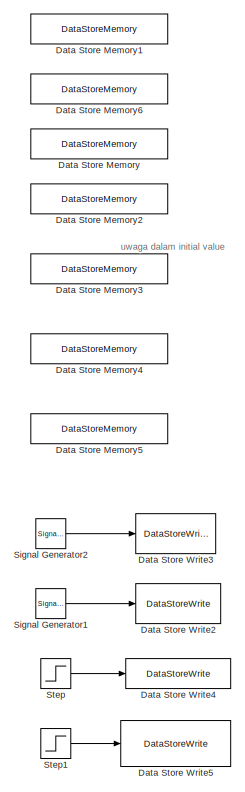
[diagram: root canvas - part 1/2, left side, full height]
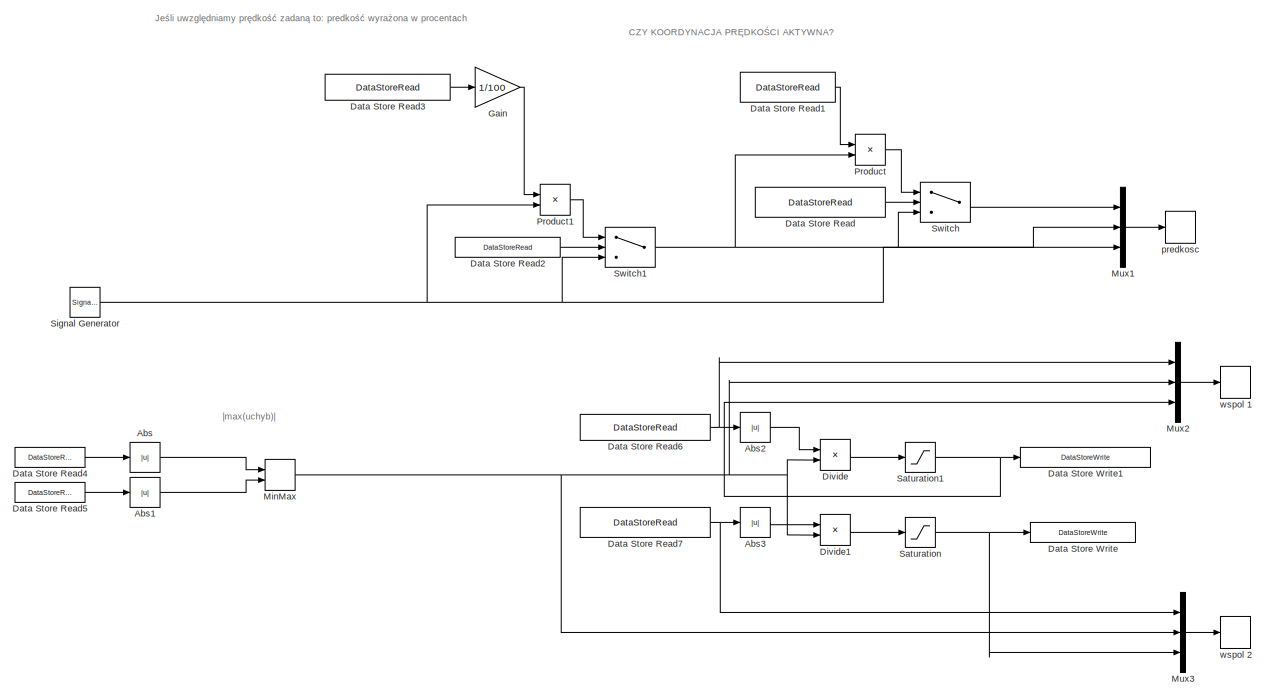
[diagram: root canvas - part 2/2, most of the canvas]
MODEL slx_eca1cad40f23
KIND model
CONFIG AbsTol = auto
CONFIG FixedStep = auto
CONFIG MaxStep = auto
CONFIG MinStep = auto
CONFIG RelTol = 1e-3
CONFIG SampleTimeConstraint = Unconstrained
CONFIG Solver = ode45
CONFIG SolverMode = Auto
CONFIG SolverName = ode45
CONFIG StartTime = 0.0
CONFIG StopTime = 20
BLOCK [Abs] Abs
  SaturateOnIntegerOverflow = off
BLOCK [Abs] Abs1
  SaturateOnIntegerOverflow = off
BLOCK [Abs] Abs2
  SaturateOnIntegerOverflow = off
BLOCK [Abs] Abs3
  SaturateOnIntegerOverflow = off
BLOCK [DataStoreMemory] Data Store Memory
  DataStoreName = V_koordynacja_ON
  ReadBeforeWriteMsg = warning
  WriteAfterReadMsg = warning
  WriteAfterWriteMsg = warning
BLOCK [DataStoreMemory] Data Store Memory1
  DataStoreName = wspolczynnik_1
  ReadBeforeWriteMsg = warning
  WriteAfterReadMsg = warning
  WriteAfterWriteMsg = warning
BLOCK [DataStoreMemory] Data Store Memory2
  DataStoreName = V_zadana_ON
  ReadBeforeWriteMsg = warning
  WriteAfterReadMsg = warning
  WriteAfterWriteMsg = warning
BLOCK [DataStoreMemory] Data Store Memory3
  DataStoreName = V_zadana_wartosc
  InitialValue = 50
  ReadBeforeWriteMsg = warning
  WriteAfterReadMsg = warning
  WriteAfterWriteMsg = warning
BLOCK [DataStoreMemory] Data Store Memory4
  DataStoreName = uchyb_1
  ReadBeforeWriteMsg = warning
  WriteAfterReadMsg = warning
  WriteAfterWriteMsg = warning
BLOCK [DataStoreMemory] Data Store Memory5
  DataStoreName = uchyb_2
  ReadBeforeWriteMsg = warning
  WriteAfterReadMsg = warning
  WriteAfterWriteMsg = warning
BLOCK [DataStoreMemory] Data Store Memory6
  DataStoreName = wspolczynnik_2
  ReadBeforeWriteMsg = warning
  WriteAfterReadMsg = warning
  WriteAfterWriteMsg = warning
BLOCK [DataStoreRead] Data Store Read
  DataStoreName = V_koordynacja_ON
  Ports = [0, 1]
BLOCK [DataStoreRead] Data Store Read1
  DataStoreName = wspolczynnik_1
  Ports = [0, 1]
BLOCK [DataStoreRead] Data Store Read2
  DataStoreName = V_zadana_ON
  Ports = [0, 1]
BLOCK [DataStoreRead] Data Store Read3
  DataStoreName = V_zadana_wartosc
  Ports = [0, 1]
BLOCK [DataStoreRead] Data Store Read4
  DataStoreName = uchyb_1
  Ports = [0, 1]
BLOCK [DataStoreRead] Data Store Read5
  DataStoreName = uchyb_2
  Ports = [0, 1]
BLOCK [DataStoreRead] Data Store Read6
  DataStoreName = uchyb_1
  Ports = [0, 1]
BLOCK [DataStoreRead] Data Store Read7
  DataStoreName = uchyb_2
  Ports = [0, 1]
BLOCK [DataStoreWrite] Data Store Write
  DataStoreName = wspolczynnik_2
  Ports = [1]
BLOCK [DataStoreWrite] Data Store Write1
  DataStoreName = wspolczynnik_1
  Ports = [1]
BLOCK [DataStoreWrite] Data Store Write2
  DataStoreName = uchyb_1
  Ports = [1]
BLOCK [DataStoreWrite] Data Store Write3
  DataStoreName = uchyb_2
  Ports = [1]
BLOCK [DataStoreWrite] Data Store Write4
  DataStoreName = V_zadana_ON
  Ports = [1]
BLOCK [DataStoreWrite] Data Store Write5
  DataStoreName = V_koordynacja_ON
  Ports = [1]
BLOCK [Product] Divide
  InputSameDT = off
  Inputs = */
  OutDataTypeStr = Inherit: Inherit via internal rule
  Ports = [2, 1]
  RndMeth = Floor
  SaturateOnIntegerOverflow = off
BLOCK [Product] Divide1
  InputSameDT = off
  Inputs = */
  OutDataTypeStr = Inherit: Inherit via internal rule
  Ports = [2, 1]
  RndMeth = Floor
  SaturateOnIntegerOverflow = off
BLOCK [Gain] Gain
  Gain = 1/100
  OutDataTypeStr = Inherit: Inherit via internal rule
  ParamDataTypeStr = Inherit: Inherit via internal rule
  SaturateOnIntegerOverflow = off
BLOCK [MinMax] MinMax
  Function = max
  InputSameDT = off
  Inputs = 2
  Ports = [2, 1]
  SaturateOnIntegerOverflow = off
BLOCK [Mux] Mux1
  DisplayOption = bar
  Inputs = 3
  Ports = [3, 1]
BLOCK [Mux] Mux2
  DisplayOption = bar
  Inputs = 3
  Ports = [3, 1]
BLOCK [Mux] Mux3
  DisplayOption = bar
  Inputs = 3
  Ports = [3, 1]
BLOCK [Product] Product
  InputSameDT = off
  OutDataTypeStr = Inherit: Inherit via internal rule
  Ports = [2, 1]
  RndMeth = Floor
  SaturateOnIntegerOverflow = off
BLOCK [Product] Product1
  InputSameDT = off
  OutDataTypeStr = Inherit: Inherit via internal rule
  Ports = [2, 1]
  RndMeth = Floor
  SaturateOnIntegerOverflow = off
BLOCK [Saturate] Saturation
  InputPortMap = u0
  LowerLimit = 0.05
  Ports = [1, 1]
  UpperLimit = 1
BLOCK [Saturate] Saturation1
  InputPortMap = u0
  LowerLimit = 0.05
  Ports = [1, 1]
  UpperLimit = 1
BLOCK [SignalGenerator] Signal Generator
  Ports = [0, 1]
  Units = rad/sec
BLOCK [SignalGenerator] Signal Generator1
  Amplitude = 5
  Frequency = 2
  Ports = [0, 1]
  Units = rad/sec
BLOCK [SignalGenerator] Signal Generator2
  Amplitude = 5
  Ports = [0, 1]
  Units = rad/sec
BLOCK [Step] Step
  SampleTime = 0
  Time = 2
BLOCK [Step] Step1
  SampleTime = 0
  Time = 5
BLOCK [Switch] Switch
  Criteria = u2 > Threshold
  InputSameDT = off
  SaturateOnIntegerOverflow = off
BLOCK [Switch] Switch1
  Criteria = u2 > Threshold
  InputSameDT = off
  SaturateOnIntegerOverflow = off
BLOCK [TimeScope] predkosc 
  NumInputPorts = 1
  Ports = [1]
  ScopeSpecificationString = Simulink.scopes.TimeScopeBlockCfg('CurrentConfiguration', extmgr.ConfigurationSet(extmgr.Configuration('Core','General UI',true),extmgr.Configuration('Core','Source UI',true),extmgr.Configuration('Sources','WiredSimulink',true,'DataLoggingLimitDataPoints',true,'DataLoggingDecimation','1','DataLoggingDecimateData',true,'DataLoggingSaveFormat','Array'),extmgr.Configuration('Visuals','Time Domain',tr...<+1687ch>
BLOCK [TimeScope] wspol 1 
  NumInputPorts = 1
  Ports = [1]
  ScopeSpecificationString = Simulink.scopes.TimeScopeBlockCfg('CurrentConfiguration', extmgr.ConfigurationSet(extmgr.Configuration('Core','General UI',true),extmgr.Configuration('Core','Source UI',true),extmgr.Configuration('Sources','WiredSimulink',true,'DataLoggingLimitDataPoints',true,'DataLoggingDecimation','1','DataLoggingDecimateData',true,'DataLoggingSaveFormat','Array','DataLoggingVariableName','ScopeData1'),extmgr.C...<+1730ch>
BLOCK [TimeScope] wspol 2 
  NumInputPorts = 1
  Ports = [1]
  ScopeSpecificationString = Simulink.scopes.TimeScopeBlockCfg('CurrentConfiguration', extmgr.ConfigurationSet(extmgr.Configuration('Core','General UI',true),extmgr.Configuration('Core','Source UI',true),extmgr.Configuration('Sources','WiredSimulink',true,'DataLoggingLimitDataPoints',true,'DataLoggingDecimation','1','DataLoggingDecimateData',true,'DataLoggingSaveFormat','Array','DataLoggingVariableName','ScopeData2'),extmgr.C...<+1757ch>
ANNOTATION (root): CZY KOORDYNACJA PRĘDKOŚCI AKTYWNA?
ANNOTATION (root): Jeśli uwzględniamy prędkość zadaną to: predkość wyrażona w procentach
ANNOTATION (root): uwaga dalam initial value
ANNOTATION (root): |max(uchyb)|
LINE Abs1:1 -> MinMax:2
LINE Abs2:1 -> Divide:1
LINE Abs3:1 -> Divide1:1
LINE Abs:1 -> MinMax:1
LINE Data Store Read1:1 -> Product:1
LINE Data Store Read2:1 -> Switch1:2
LINE Data Store Read3:1 -> Gain:1
LINE Data Store Read4:1 -> Abs:1
LINE Data Store Read5:1 -> Abs1:1
NET Data Store Read6:1 -> Abs2:1, Mux2:1
NET Data Store Read7:1 -> Abs3:1, Mux3:1
LINE Data Store Read:1 -> Switch:2
LINE Divide1:1 -> Saturation:1
LINE Divide:1 -> Saturation1:1
LINE Gain:1 -> Product1:1
NET MinMax:1 -> Divide1:2, Divide:2, Mux2:2, Mux3:2
LINE Mux1:1 -> predkosc :1
LINE Mux2:1 -> wspol 1 :1
LINE Mux3:1 -> wspol 2 :1
LINE Product1:1 -> Switch1:1
LINE Product:1 -> Switch:1
NET Saturation1:1 -> Data Store Write1:1, Mux2:3
NET Saturation:1 -> Data Store Write:1, Mux3:3
LINE Signal Generator1:1 -> Data Store Write2:1
LINE Signal Generator2:1 -> Data Store Write3:1
NET Signal Generator:1 -> Mux1:3, Product1:2, Switch1:3
LINE Step1:1 -> Data Store Write5:1
LINE Step:1 -> Data Store Write4:1
NET Switch1:1 -> Mux1:2, Product:2, Switch:3
LINE Switch:1 -> Mux1:1
note: NET lines group one-source signal fan-out (src -> all destinations, sorted); 1:1 wires keep LINE
